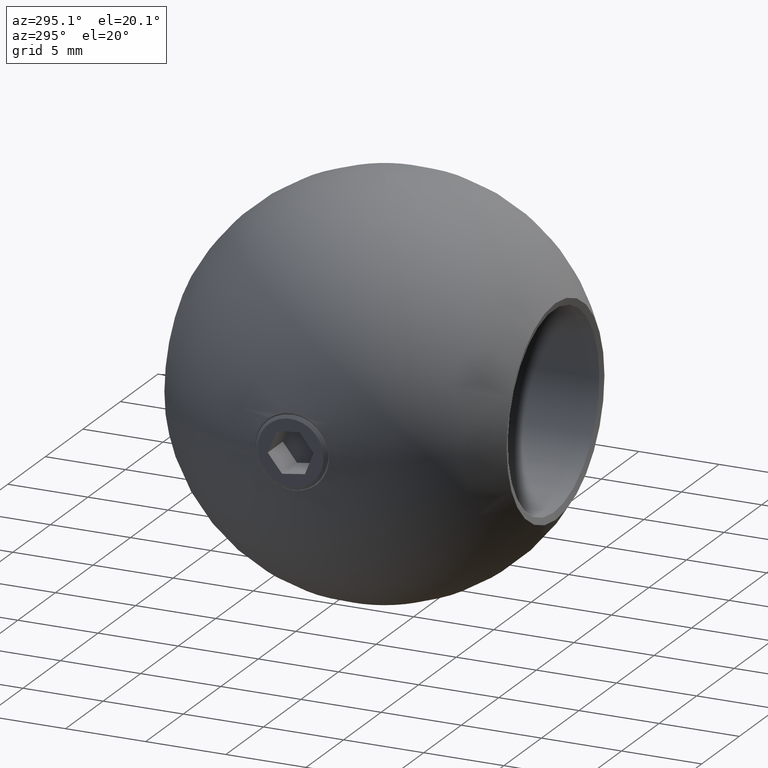
[diagram: clean part render]
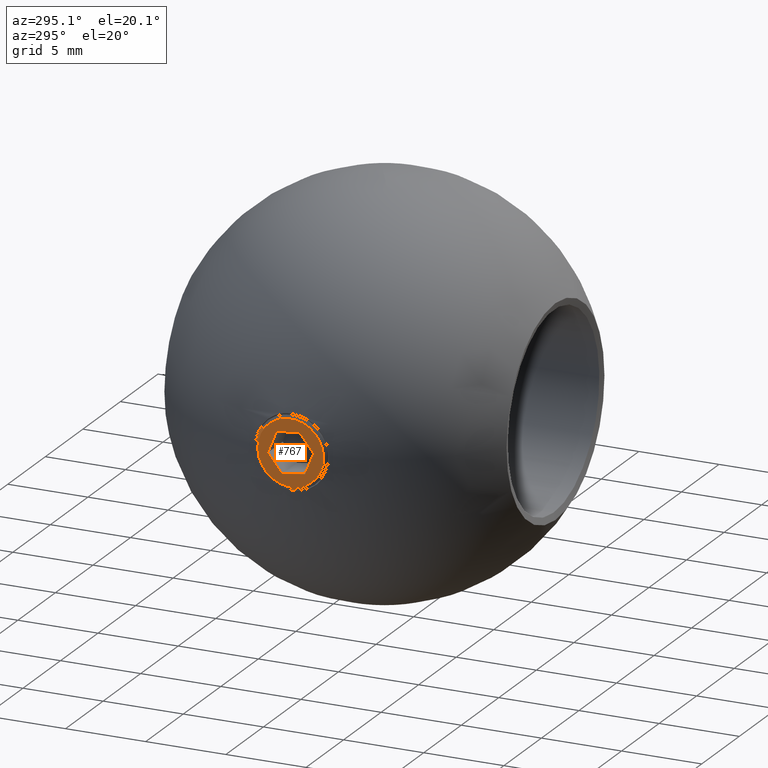
[diagram: same view with one face highlighted and labeled with its STEP entity id]
A machine part, auxiliary view. The second image highlights one B-rep face of the part: STEP entity #767.
In plain terms, the highlighted planar face has unit normal (-1, -0, 0).
Its self-contained STEP definition (entity closure, byte-faithful):
#4 = VECTOR ( 'NONE', #946, 1000.000000000000000 ) ;
#43 = LINE ( 'NONE', #1148, #997 ) ;
#51 = CARTESIAN_POINT ( 'NONE',  ( 0.000000000000000000, 1.250000000000002665, 0.7216878364870300544 ) ) ;
#70 = ORIENTED_EDGE ( 'NONE', *, *, #539, .T. ) ;
#82 = EDGE_CURVE ( 'NONE', #681, #681, #226, .T. ) ;
#103 = CARTESIAN_POINT ( 'NONE',  ( -0.000000000000000000, -1.249999999999997335, -0.7216878364870336071 ) ) ;
#131 = ORIENTED_EDGE ( 'NONE', *, *, #82, .T. ) ;
#150 = VERTEX_POINT ( 'NONE', #1176 ) ;
#176 = EDGE_CURVE ( 'NONE', #568, #827, #845, .T. ) ;
#181 = VECTOR ( 'NONE', #624, 1000.000000000000000 ) ;
#226 = CIRCLE ( 'NONE', #1115, 2.055000000000001048 ) ;
#266 = DIRECTION ( 'NONE',  ( 0.000000000000000000, 0.8660254037844383745, -0.5000000000000003331 ) ) ;
#284 = CARTESIAN_POINT ( 'NONE',  ( 0.000000000000000000, 0.000000000000000000, 0.000000000000000000 ) ) ;
#291 = VERTEX_POINT ( 'NONE', #103 ) ;
#314 = CARTESIAN_POINT ( 'NONE',  ( 0.000000000000000000, -1.249999999999997335, 0.7216878364870308316 ) ) ;
#376 = DIRECTION ( 'NONE',  ( -1.000000000000000000, -0.000000000000000000, -0.000000000000000000 ) ) ;
#380 = ORIENTED_EDGE ( 'NONE', *, *, #176, .F. ) ;
#384 = AXIS2_PLACEMENT_3D ( 'NONE', #1152, #1041, #666 ) ;
#392 = LINE ( 'NONE', #314, #181 ) ;
#464 = ORIENTED_EDGE ( 'NONE', *, *, #772, .T. ) ;
#470 = DIRECTION ( 'NONE',  ( 0.000000000000000000, 0.8660254037844387076, 0.4999999999999997780 ) ) ;
#479 = EDGE_LOOP ( 'NONE', ( #380, #585, #955, #70, #464, #699 ) ) ;
#482 = CARTESIAN_POINT ( 'NONE',  ( 0.000000000000000000, 1.250000000000002665, 0.7216878364870300544 ) ) ;
#539 = EDGE_CURVE ( 'NONE', #828, #291, #392, .T. ) ;
#568 = VERTEX_POINT ( 'NONE', #1135 ) ;
#581 = VECTOR ( 'NONE', #853, 1000.000000000000114 ) ;
#584 = VECTOR ( 'NONE', #1059, 1000.000000000000000 ) ;
#585 = ORIENTED_EDGE ( 'NONE', *, *, #792, .T. ) ;
#619 = CARTESIAN_POINT ( 'NONE',  ( 0.000000000000000000, 2.533044388064149376E-15, -1.443375672974066548 ) ) ;
#624 = DIRECTION ( 'NONE',  ( -0.000000000000000000, 0.000000000000000000, -1.000000000000000000 ) ) ;
#651 = CARTESIAN_POINT ( 'NONE',  ( 0.000000000000000000, 1.250000000000002665, -0.7216878364870343843 ) ) ;
#666 = DIRECTION ( 'NONE',  ( -0.000000000000000000, 0.000000000000000000, 1.000000000000000000 ) ) ;
#681 = VERTEX_POINT ( 'NONE', #700 ) ;
#685 = VERTEX_POINT ( 'NONE', #619 ) ;
#699 = ORIENTED_EDGE ( 'NONE', *, *, #922, .F. ) ;
#700 = CARTESIAN_POINT ( 'NONE',  ( 0.000000000000000000, 0.000000000000000000, 2.055000000000001048 ) ) ;
#751 = CARTESIAN_POINT ( 'NONE',  ( 0.000000000000000000, -1.249999999999997335, 0.7216878364870308316 ) ) ;
#767 = ADVANCED_FACE ( 'NONE', ( #1009, #795 ), #1262, .T. ) ;
#772 = EDGE_CURVE ( 'NONE', #291, #685, #43, .T. ) ;
#792 = EDGE_CURVE ( 'NONE', #568, #150, #1228, .T. ) ;
#795 = FACE_BOUND ( 'NONE', #479, .T. ) ;
#813 = EDGE_LOOP ( 'NONE', ( #131 ) ) ;
#827 = VERTEX_POINT ( 'NONE', #861 ) ;
#828 = VERTEX_POINT ( 'NONE', #961 ) ;
#845 = LINE ( 'NONE', #482, #584 ) ;
#853 = DIRECTION ( 'NONE',  ( 0.000000000000000000, -0.8660254037844387076, -0.4999999999999998890 ) ) ;
#861 = CARTESIAN_POINT ( 'NONE',  ( 0.000000000000000000, 1.250000000000002665, -0.7216878364870343843 ) ) ;
#922 = EDGE_CURVE ( 'NONE', #827, #685, #1058, .T. ) ;
#941 = EDGE_CURVE ( 'NONE', #828, #150, #1248, .T. ) ;
#946 = DIRECTION ( 'NONE',  ( 0.000000000000000000, -0.8660254037844383745, 0.5000000000000004441 ) ) ;
#955 = ORIENTED_EDGE ( 'NONE', *, *, #941, .F. ) ;
#961 = CARTESIAN_POINT ( 'NONE',  ( 0.000000000000000000, -1.249999999999997335, 0.7216878364870308316 ) ) ;
#997 = VECTOR ( 'NONE', #266, 1000.000000000000114 ) ;
#1009 = FACE_OUTER_BOUND ( 'NONE', #813, .T. ) ;
#1041 = DIRECTION ( 'NONE',  ( -1.000000000000000000, 0.000000000000000000, -0.000000000000000000 ) ) ;
#1058 = LINE ( 'NONE', #651, #581 ) ;
#1059 = DIRECTION ( 'NONE',  ( 0.000000000000000000, 0.000000000000000000, -1.000000000000000000 ) ) ;
#1067 = DIRECTION ( 'NONE',  ( 0.000000000000000000, 0.000000000000000000, 1.000000000000000000 ) ) ;
#1105 = VECTOR ( 'NONE', #470, 1000.000000000000114 ) ;
#1115 = AXIS2_PLACEMENT_3D ( 'NONE', #284, #376, #1067 ) ;
#1135 = CARTESIAN_POINT ( 'NONE',  ( 2.540223623131397589E-16, 1.250000000000002665, 0.7216878364870300544 ) ) ;
#1148 = CARTESIAN_POINT ( 'NONE',  ( -0.000000000000000000, -1.249999999999997335, -0.7216878364870336071 ) ) ;
#1152 = CARTESIAN_POINT ( 'NONE',  ( 2.540223623131397589E-16, 0.000000000000000000, 0.000000000000000000 ) ) ;
#1176 = CARTESIAN_POINT ( 'NONE',  ( 0.000000000000000000, 2.954450920022999583E-15, 1.443375672974062995 ) ) ;
#1228 = LINE ( 'NONE', #51, #4 ) ;
#1248 = LINE ( 'NONE', #751, #1105 ) ;
#1262 = PLANE ( 'NONE',  #384 ) ;